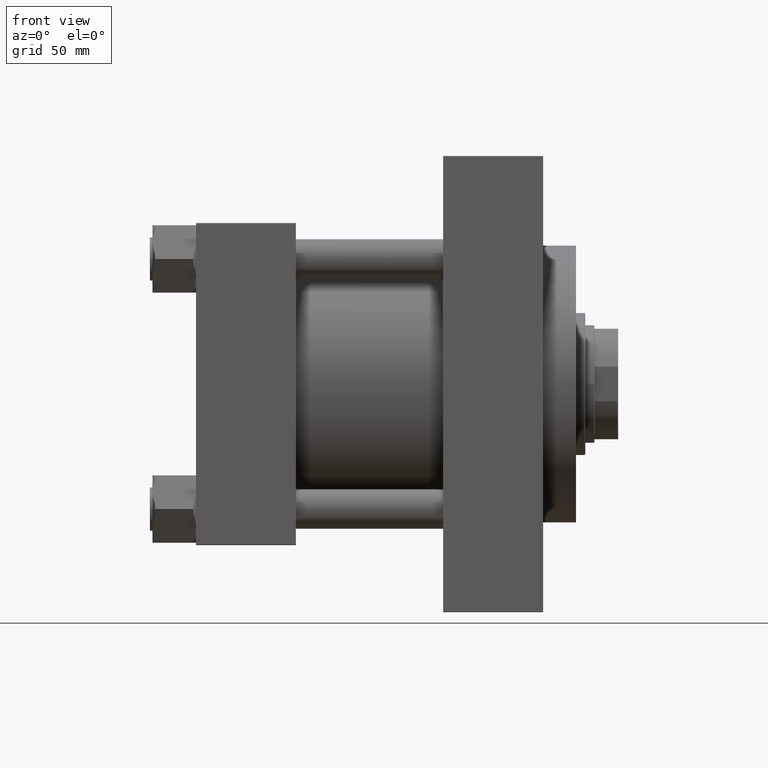
[diagram: clean part render]
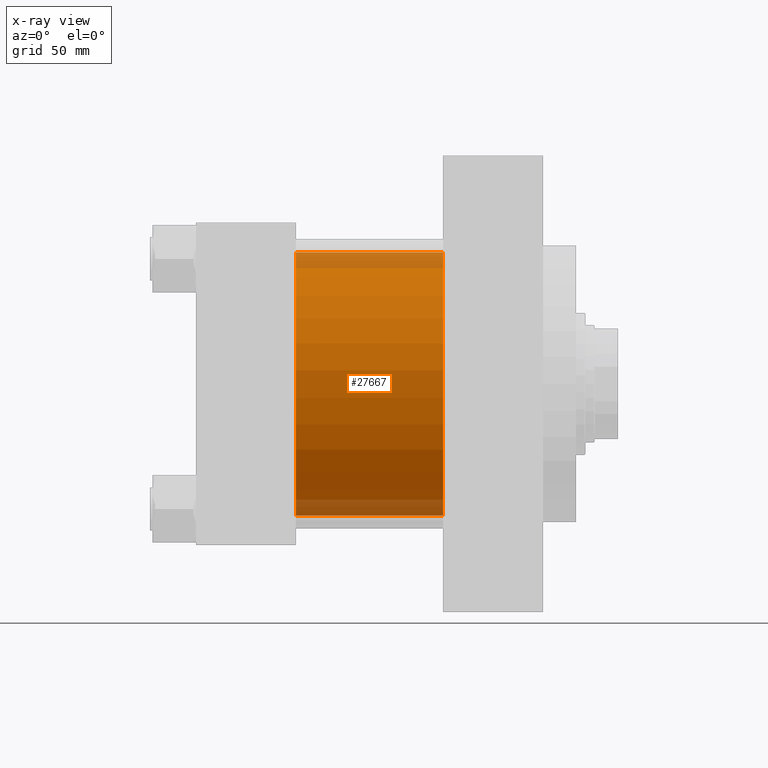
[diagram: x-ray — body ghosted, one internal face saturated and labeled with its STEP entity id]
A machine part, front view, then the same camera in x-ray: the body is ghosted and one INTERNAL B-rep face — a face not visible from any outside direction — is saturated and labeled: STEP entity #27667.
In plain terms, the highlighted cylindrical surface (partial cylindrical patch) has radius 100 mm, axis along (-1, -0, -0).
Its self-contained STEP definition (entity closure, byte-faithful):
#386 = DIRECTION ( 'NONE',  ( 0.000000000000000000, 0.000000000000000000, -1.000000000000000000 ) ) ;
#4068 = AXIS2_PLACEMENT_3D ( 'NONE', #6995, #47461, #14466 ) ;
#6391 = EDGE_CURVE ( 'NONE', #18266, #27760, #36188, .T. ) ;
#6995 = CARTESIAN_POINT ( 'NONE',  ( 188.0000000000000000, -2.602085213965210642E-15, 0.000000000000000000 ) ) ;
#7406 = CARTESIAN_POINT ( 'NONE',  ( 188.0000000000000000, -2.602085213965210642E-15, 100.0000000000000000 ) ) ;
#10410 = VERTEX_POINT ( 'NONE', #7406 ) ;
#10894 = CARTESIAN_POINT ( 'NONE',  ( 188.0000000000000000, 9.644382777508321529E-15, -100.0000000000000000 ) ) ;
#11126 = EDGE_LOOP ( 'NONE', ( #38151, #44233, #44285, #18421 ) ) ;
#11134 = DIRECTION ( 'NONE',  ( -1.000000000000000000, -0.000000000000000000, -0.000000000000000000 ) ) ;
#11137 = VERTEX_POINT ( 'NONE', #22230 ) ;
#11186 = CARTESIAN_POINT ( 'NONE',  ( 188.0000000000000000, 9.644382777508321529E-15, -100.0000000000000000 ) ) ;
#14396 = DIRECTION ( 'NONE',  ( 0.000000000000000000, 0.000000000000000000, 1.000000000000000000 ) ) ;
#14466 = DIRECTION ( 'NONE',  ( 0.000000000000000000, 0.000000000000000000, -1.000000000000000000 ) ) ;
#16098 = EDGE_CURVE ( 'NONE', #10410, #11137, #33913, .T. ) ;
#18266 = VERTEX_POINT ( 'NONE', #11186 ) ;
#18421 = ORIENTED_EDGE ( 'NONE', *, *, #16098, .F. ) ;
#18470 = CARTESIAN_POINT ( 'NONE',  ( 188.0000000000000000, -2.602085213965210642E-15, 0.000000000000000000 ) ) ;
#19950 = CIRCLE ( 'NONE', #26124, 100.0000000000000000 ) ;
#21921 = VECTOR ( 'NONE', #23768, 1000.000000000000000 ) ;
#22230 = CARTESIAN_POINT ( 'NONE',  ( 76.00000000000000000, -2.602085213965210642E-15, 100.0000000000000000 ) ) ;
#23768 = DIRECTION ( 'NONE',  ( -1.000000000000000000, -0.000000000000000000, -0.000000000000000000 ) ) ;
#24066 = CIRCLE ( 'NONE', #4068, 100.0000000000000000 ) ;
#25235 = CYLINDRICAL_SURFACE ( 'NONE', #35299, 100.0000000000000000 ) ;
#26124 = AXIS2_PLACEMENT_3D ( 'NONE', #29275, #43728, #386 ) ;
#27667 = ADVANCED_FACE ( 'NONE', ( #39682 ), #25235, .F. ) ;
#27760 = VERTEX_POINT ( 'NONE', #41584 ) ;
#29275 = CARTESIAN_POINT ( 'NONE',  ( 76.00000000000000000, -2.602085213965210642E-15, 0.000000000000000000 ) ) ;
#30008 = EDGE_CURVE ( 'NONE', #11137, #27760, #19950, .T. ) ;
#33913 = LINE ( 'NONE', #45457, #21921 ) ;
#35299 = AXIS2_PLACEMENT_3D ( 'NONE', #18470, #47632, #14396 ) ;
#36188 = LINE ( 'NONE', #10894, #39511 ) ;
#38151 = ORIENTED_EDGE ( 'NONE', *, *, #40582, .T. ) ;
#39511 = VECTOR ( 'NONE', #11134, 1000.000000000000000 ) ;
#39682 = FACE_OUTER_BOUND ( 'NONE', #11126, .T. ) ;
#40582 = EDGE_CURVE ( 'NONE', #10410, #18266, #24066, .T. ) ;
#41584 = CARTESIAN_POINT ( 'NONE',  ( 76.00000000000000000, 9.644382777508321529E-15, -100.0000000000000000 ) ) ;
#43728 = DIRECTION ( 'NONE',  ( 1.000000000000000000, 0.000000000000000000, 0.000000000000000000 ) ) ;
#44233 = ORIENTED_EDGE ( 'NONE', *, *, #6391, .T. ) ;
#44285 = ORIENTED_EDGE ( 'NONE', *, *, #30008, .F. ) ;
#45457 = CARTESIAN_POINT ( 'NONE',  ( 188.0000000000000000, -2.602085213965210642E-15, 100.0000000000000000 ) ) ;
#47461 = DIRECTION ( 'NONE',  ( 1.000000000000000000, 0.000000000000000000, 0.000000000000000000 ) ) ;
#47632 = DIRECTION ( 'NONE',  ( -1.000000000000000000, -0.000000000000000000, -0.000000000000000000 ) ) ;